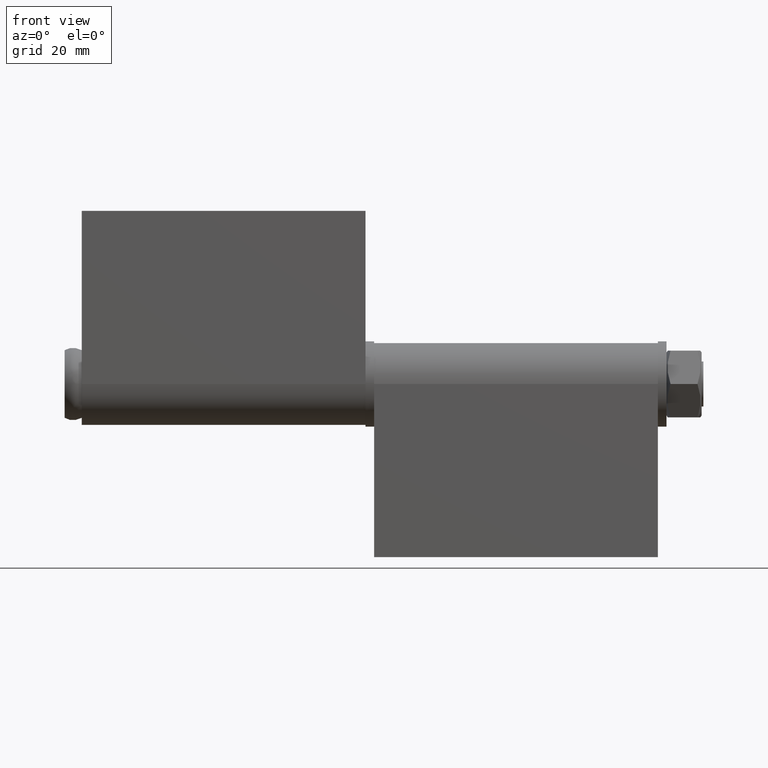
[diagram: clean part render]
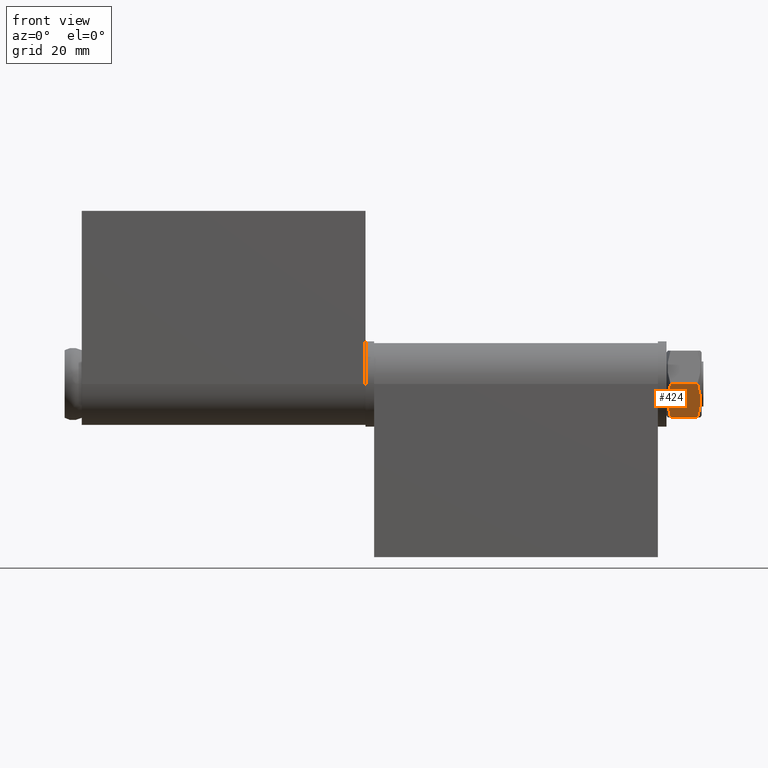
[diagram: same view with one face highlighted and labeled with its STEP entity id]
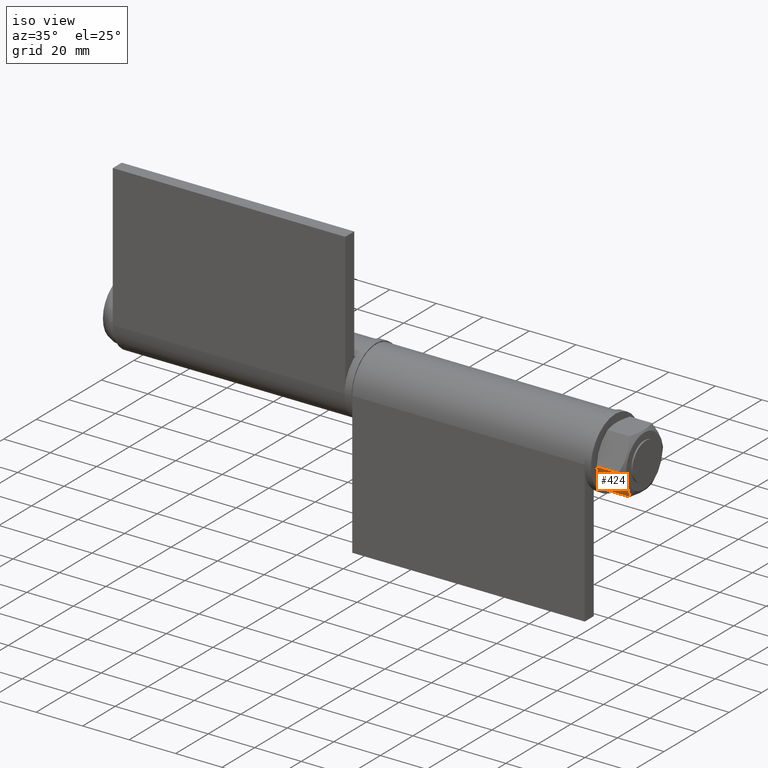
[diagram: same view with one face highlighted and labeled with its STEP entity id]
A machine part, front view. The second image highlights one B-rep face of the part: STEP entity #424.
A second angle (iso view) of the same face is appended — the face is thin or edge-on in the first view.
In plain terms, the highlighted planar face has unit normal (0, -0.866, -0.5).
Its self-contained STEP definition (entity closure, byte-faithful):
#39=(
BOUNDED_CURVE()
B_SPLINE_CURVE(2,(#774,#775,#776),.UNSPECIFIED.,.F.,.F.)
B_SPLINE_CURVE_WITH_KNOTS((3,3),(0.,1.37617771445435),.UNSPECIFIED.)
CURVE()
GEOMETRIC_REPRESENTATION_ITEM()
RATIONAL_B_SPLINE_CURVE((1.,1.15470053837925,1.))
REPRESENTATION_ITEM('')
);
#40=(
BOUNDED_CURVE()
B_SPLINE_CURVE(2,(#779,#780,#781),.UNSPECIFIED.,.F.,.F.)
B_SPLINE_CURVE_WITH_KNOTS((3,3),(0.,1.37617771445435),.UNSPECIFIED.)
CURVE()
GEOMETRIC_REPRESENTATION_ITEM()
RATIONAL_B_SPLINE_CURVE((1.,1.15470053837925,1.))
REPRESENTATION_ITEM('')
);
#63=LINE('',#766,#83);
#65=LINE('',#778,#85);
#83=VECTOR('',#563,9.51324865405187);
#85=VECTOR('',#567,9.51324865405187);
#139=FACE_OUTER_BOUND('',#170,.T.);
#170=EDGE_LOOP('',(#344,#345,#346,#347));
#226=VERTEX_POINT('',#761);
#227=VERTEX_POINT('',#765);
#229=VERTEX_POINT('',#773);
#230=VERTEX_POINT('',#777);
#269=EDGE_CURVE('',#226,#227,#63,.T.);
#272=EDGE_CURVE('',#226,#229,#39,.T.);
#273=EDGE_CURVE('',#230,#229,#65,.T.);
#274=EDGE_CURVE('',#230,#227,#40,.T.);
#344=ORIENTED_EDGE('',*,*,#272,.T.);
#345=ORIENTED_EDGE('',*,*,#273,.F.);
#346=ORIENTED_EDGE('',*,*,#274,.T.);
#347=ORIENTED_EDGE('',*,*,#269,.F.);
#400=PLANE('',#468);
#424=ADVANCED_FACE('',(#139),#400,.T.);
#468=AXIS2_PLACEMENT_3D('',#772,#565,#566);
#563=DIRECTION('',(0.,0.,-1.));
#565=DIRECTION('center_axis',(-0.5,-0.866025403784438,0.));
#566=DIRECTION('ref_axis',(0.866025403784438,-0.5,0.));
#567=DIRECTION('',(0.,0.,1.));
#761=CARTESIAN_POINT('',(-1.33226762955019E-14,-13.6,4.75662432702594));
#765=CARTESIAN_POINT('',(-8.91776885249614E-15,-13.6,-4.75662432702594));
#766=CARTESIAN_POINT('',(-1.33226762955019E-14,-13.6,0.));
#772=CARTESIAN_POINT('Origin',(-11.7779454914684,-6.79999999999999,0.));
#773=CARTESIAN_POINT('',(-11.7779454914684,-6.8,4.75662432702594));
#774=CARTESIAN_POINT('Ctrl Pts',(-9.78075020884348E-15,-13.6,4.75662432702594));
#775=CARTESIAN_POINT('Ctrl Pts',(-5.88897274573419,-10.2,6.71961524227066));
#776=CARTESIAN_POINT('Ctrl Pts',(-11.7779454914684,-6.8,4.75662432702594));
#777=CARTESIAN_POINT('',(-11.7779454914684,-6.79999999999999,-4.75662432702594));
#778=CARTESIAN_POINT('',(-11.7779454914684,-6.8,0.));
#779=CARTESIAN_POINT('Ctrl Pts',(-11.7779454914684,-6.8,-4.75662432702594));
#780=CARTESIAN_POINT('Ctrl Pts',(-5.88897274573419,-10.2,-6.71961524227066));
#781=CARTESIAN_POINT('Ctrl Pts',(-9.78075020884348E-15,-13.6,-4.75662432702594));